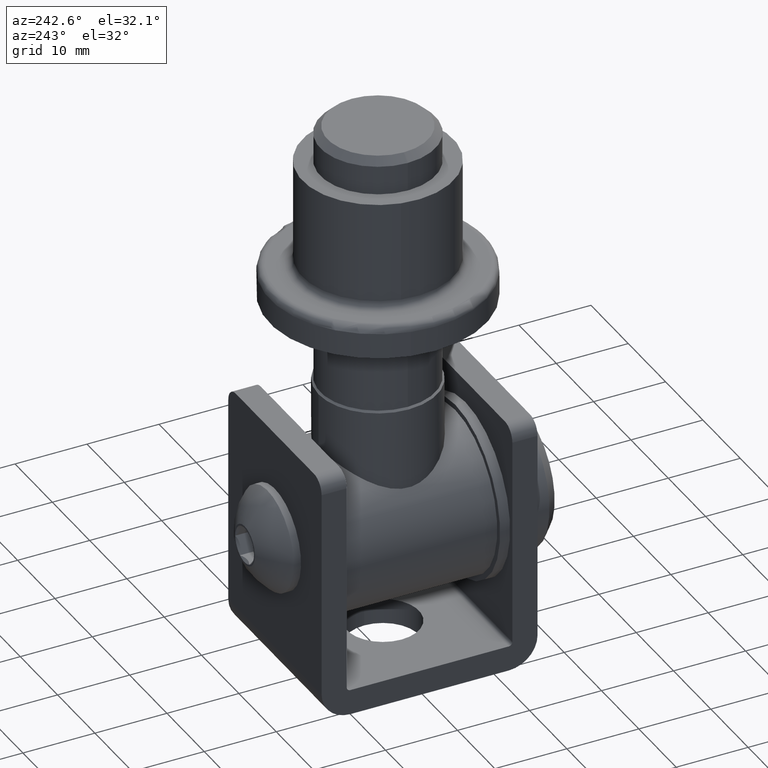
[diagram: clean part render]
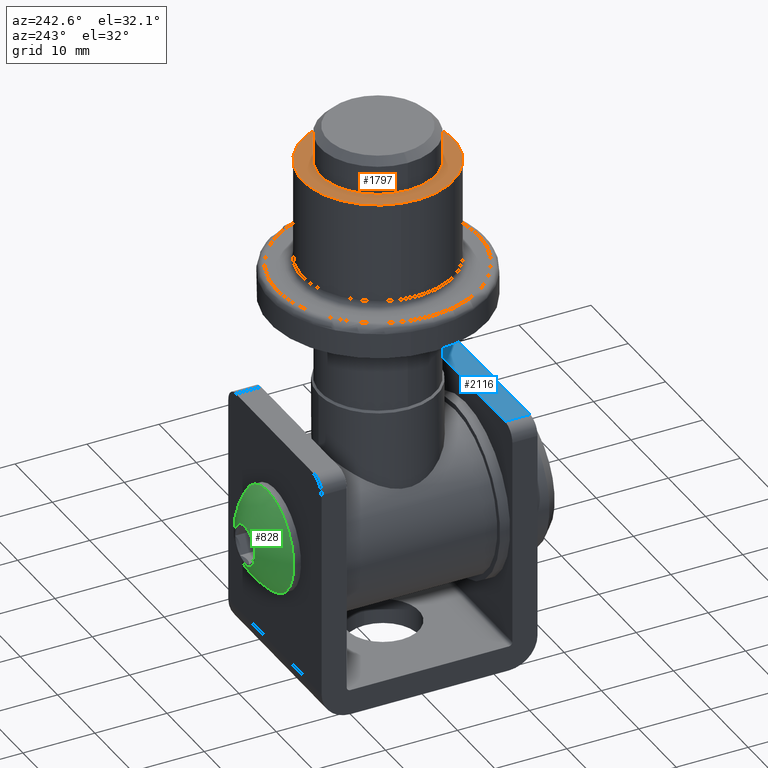
[diagram: same view with three faces highlighted in distinct colors, each labeled with its STEP entity id]
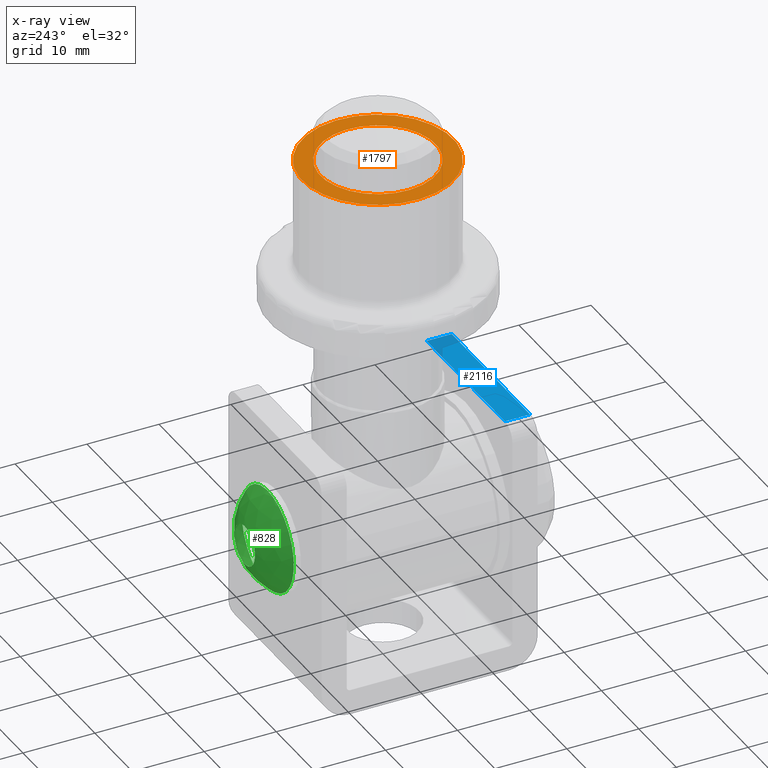
[diagram: x-ray of the same camera — body ghosted, the three highlighted faces saturated]
A machine part, auxiliary view with three faces highlighted in distinct colors.
The next image is the same camera in x-ray (body ghosted, the three faces saturated) — at least one of them is partly hidden behind the body in this view.
Their STEP definitions:

[orange] entity #1797 — the highlighted planar face has unit normal (-0, -0, 1).
#90 = EDGE_LOOP ( 'NONE', ( #6815 ) ) ;
#619 = CARTESIAN_POINT ( 'NONE',  ( 0.000000000000000000, 19.50000000000000000, 0.000000000000000000 ) ) ;
#1271 = EDGE_CURVE ( 'NONE', #10581, #10581, #9638, .T. ) ;
#1388 = VERTEX_POINT ( 'NONE', #2608 ) ;
#1561 = PLANE ( 'NONE',  #7039 ) ;
#1797 = ADVANCED_FACE ( 'NONE', ( #7055, #2805 ), #1561, .T. ) ;
#2036 = AXIS2_PLACEMENT_3D ( 'NONE', #12618, #13917, #4132 ) ;
#2608 = CARTESIAN_POINT ( 'NONE',  ( 0.000000000000000000, 19.50000000000000000, -10.49999999999999467 ) ) ;
#2692 = EDGE_LOOP ( 'NONE', ( #13382 ) ) ;
#2805 = FACE_OUTER_BOUND ( 'NONE', #90, .T. ) ;
#4132 = DIRECTION ( 'NONE',  ( 0.000000000000000000, 0.000000000000000000, 1.000000000000000000 ) ) ;
#4674 = CARTESIAN_POINT ( 'NONE',  ( 0.000000000000000000, 19.50000000000000000, 0.000000000000000000 ) ) ;
#4879 = CIRCLE ( 'NONE', #6578, 10.49999999999999467 ) ;
#5682 = CARTESIAN_POINT ( 'NONE',  ( 0.000000000000000000, 19.50000000000000000, 8.000000000000000000 ) ) ;
#5937 = DIRECTION ( 'NONE',  ( 0.000000000000000000, -0.000000000000000000, 1.000000000000000000 ) ) ;
#6578 = AXIS2_PLACEMENT_3D ( 'NONE', #4674, #8848, #6807 ) ;
#6807 = DIRECTION ( 'NONE',  ( 0.000000000000000000, 0.000000000000000000, -1.000000000000000000 ) ) ;
#6815 = ORIENTED_EDGE ( 'NONE', *, *, #9769, .F. ) ;
#7039 = AXIS2_PLACEMENT_3D ( 'NONE', #619, #7062, #5937 ) ;
#7055 = FACE_BOUND ( 'NONE', #2692, .T. ) ;
#7062 = DIRECTION ( 'NONE',  ( 0.000000000000000000, 1.000000000000000000, 0.000000000000000000 ) ) ;
#8848 = DIRECTION ( 'NONE',  ( -0.000000000000000000, -1.000000000000000000, -0.000000000000000000 ) ) ;
#9638 = CIRCLE ( 'NONE', #2036, 8.000000000000000000 ) ;
#9769 = EDGE_CURVE ( 'NONE', #1388, #1388, #4879, .T. ) ;
#10581 = VERTEX_POINT ( 'NONE', #5682 ) ;
#12618 = CARTESIAN_POINT ( 'NONE',  ( 0.000000000000000000, 19.50000000000000000, 0.000000000000000000 ) ) ;
#13382 = ORIENTED_EDGE ( 'NONE', *, *, #1271, .T. ) ;
#13917 = DIRECTION ( 'NONE',  ( -0.000000000000000000, -1.000000000000000000, -0.000000000000000000 ) ) ;

[blue] entity #2116 — the highlighted planar face has unit normal (0, -0, 1).
#430 = EDGE_LOOP ( 'NONE', ( #1649, #6618, #12485, #3990 ) ) ;
#876 = VERTEX_POINT ( 'NONE', #9605 ) ;
#1649 = ORIENTED_EDGE ( 'NONE', *, *, #13115, .T. ) ;
#2116 = ADVANCED_FACE ( 'NONE', ( #2978 ), #12868, .T. ) ;
#2174 = CARTESIAN_POINT ( 'NONE',  ( 10.50000000000000000, 14.99999999999999822, 0.000000000000000000 ) ) ;
#2175 = VERTEX_POINT ( 'NONE', #2174 ) ;
#2297 = LINE ( 'NONE', #7439, #9960 ) ;
#2822 = EDGE_CURVE ( 'NONE', #7172, #876, #2297, .T. ) ;
#2978 = FACE_OUTER_BOUND ( 'NONE', #430, .T. ) ;
#3072 = DIRECTION ( 'NONE',  ( 0.000000000000000000, 1.000000000000000000, 9.912705577010338368E-16 ) ) ;
#3600 = AXIS2_PLACEMENT_3D ( 'NONE', #11825, #5332, #3072 ) ;
#3761 = CARTESIAN_POINT ( 'NONE',  ( -10.49999999999999822, 11.50000000000000178, -3.469446951953614189E-15 ) ) ;
#3990 = ORIENTED_EDGE ( 'NONE', *, *, #13835, .T. ) ;
#4124 = DIRECTION ( 'NONE',  ( 0.000000000000000000, -1.000000000000000000, -9.912705577010338368E-16 ) ) ;
#4144 = CARTESIAN_POINT ( 'NONE',  ( 10.50000000000000000, 11.50000000000000178, -3.469446951953614189E-15 ) ) ;
#4521 = VECTOR ( 'NONE', #5369, 1000.000000000000000 ) ;
#5328 = VECTOR ( 'NONE', #4124, 1000.000000000000000 ) ;
#5332 = DIRECTION ( 'NONE',  ( 0.000000000000000000, 9.912705577010338368E-16, -1.000000000000000000 ) ) ;
#5369 = DIRECTION ( 'NONE',  ( -1.000000000000000000, -0.000000000000000000, -0.000000000000000000 ) ) ;
#6208 = LINE ( 'NONE', #7575, #4521 ) ;
#6335 = LINE ( 'NONE', #8885, #9748 ) ;
#6618 = ORIENTED_EDGE ( 'NONE', *, *, #2822, .T. ) ;
#6832 = LINE ( 'NONE', #13857, #5328 ) ;
#7172 = VERTEX_POINT ( 'NONE', #3761 ) ;
#7249 = DIRECTION ( 'NONE',  ( -0.000000000000000000, 1.000000000000000000, 9.912705577010338368E-16 ) ) ;
#7439 = CARTESIAN_POINT ( 'NONE',  ( -10.49999999999999822, 14.99999999999999822, 0.000000000000000000 ) ) ;
#7575 = CARTESIAN_POINT ( 'NONE',  ( 12.50000000000000000, 14.99999999999999822, 0.000000000000000000 ) ) ;
#7965 = DIRECTION ( 'NONE',  ( -1.000000000000000000, -0.000000000000000000, -0.000000000000000000 ) ) ;
#8885 = CARTESIAN_POINT ( 'NONE',  ( 12.50000000000000000, 11.50000000000000178, -3.469446951953614189E-15 ) ) ;
#8956 = VERTEX_POINT ( 'NONE', #4144 ) ;
#9605 = CARTESIAN_POINT ( 'NONE',  ( -10.49999999999999822, 14.99999999999999822, 0.000000000000000000 ) ) ;
#9748 = VECTOR ( 'NONE', #7965, 1000.000000000000000 ) ;
#9960 = VECTOR ( 'NONE', #7249, 1000.000000000000000 ) ;
#10685 = EDGE_CURVE ( 'NONE', #2175, #876, #6208, .T. ) ;
#11825 = CARTESIAN_POINT ( 'NONE',  ( 12.50000000000000000, 14.99999999999999822, 0.000000000000000000 ) ) ;
#12485 = ORIENTED_EDGE ( 'NONE', *, *, #10685, .F. ) ;
#12868 = PLANE ( 'NONE',  #3600 ) ;
#13115 = EDGE_CURVE ( 'NONE', #8956, #7172, #6335, .T. ) ;
#13835 = EDGE_CURVE ( 'NONE', #2175, #8956, #6832, .T. ) ;
#13857 = CARTESIAN_POINT ( 'NONE',  ( 10.50000000000000000, 11.50000000000000178, -3.469446951953614189E-15 ) ) ;

[green] entity #828 — the highlighted spherical surface has radius 8.5356 mm.
#222 = VERTEX_POINT ( 'NONE', #5902 ) ;
#828 = ADVANCED_FACE ( 'NONE', ( #12691, #9124 ), #2836, .T. ) ;
#1571 = CARTESIAN_POINT ( 'NONE',  ( -9.416456888161249228E-14, 16.99999999999998934, 0.000000000000000000 ) ) ;
#2028 = EDGE_LOOP ( 'NONE', ( #6928 ) ) ;
#2836 = SPHERICAL_SURFACE ( 'NONE', #3226, 8.535619956023333899 ) ;
#3226 = AXIS2_PLACEMENT_3D ( 'NONE', #8453, #4192, #14030 ) ;
#3253 = ORIENTED_EDGE ( 'NONE', *, *, #9651, .F. ) ;
#4192 = DIRECTION ( 'NONE',  ( 0.000000000000000000, 0.000000000000000000, 1.000000000000000000 ) ) ;
#4727 = CARTESIAN_POINT ( 'NONE',  ( -2.738650000000010465, 20.20000000000003126, 0.000000000000000000 ) ) ;
#5902 = CARTESIAN_POINT ( 'NONE',  ( -7.000000000000111022, 16.99999999999995381, 0.000000000000000000 ) ) ;
#6760 = AXIS2_PLACEMENT_3D ( 'NONE', #8800, #8664, #12042 ) ;
#6928 = ORIENTED_EDGE ( 'NONE', *, *, #7295, .T. ) ;
#7295 = EDGE_CURVE ( 'NONE', #222, #222, #7942, .T. ) ;
#7373 = AXIS2_PLACEMENT_3D ( 'NONE', #1571, #9463, #10651 ) ;
#7942 = CIRCLE ( 'NONE', #7373, 7.000000000000016875 ) ;
#8453 = CARTESIAN_POINT ( 'NONE',  ( 8.673617379884035472E-16, 12.11565684726562075, 0.000000000000000000 ) ) ;
#8664 = DIRECTION ( 'NONE',  ( -5.539092287153678847E-15, 1.000000000000000000, -0.000000000000000000 ) ) ;
#8800 = CARTESIAN_POINT ( 'NONE',  ( -1.118896642005045751E-13, 20.20000000000004547, 0.000000000000000000 ) ) ;
#9124 = FACE_OUTER_BOUND ( 'NONE', #10329, .T. ) ;
#9463 = DIRECTION ( 'NONE',  ( -5.539092287153678847E-15, 1.000000000000000000, -0.000000000000000000 ) ) ;
#9651 = EDGE_CURVE ( 'NONE', #13992, #13992, #13532, .T. ) ;
#10329 = EDGE_LOOP ( 'NONE', ( #3253 ) ) ;
#10651 = DIRECTION ( 'NONE',  ( -1.000000000000000000, -5.451988067355666480E-15, 0.000000000000000000 ) ) ;
#12042 = DIRECTION ( 'NONE',  ( -1.000000000000000000, -5.067382764433195760E-15, 0.000000000000000000 ) ) ;
#12691 = FACE_OUTER_BOUND ( 'NONE', #2028, .T. ) ;
#13532 = CIRCLE ( 'NONE', #6760, 2.738649999999898554 ) ;
#13992 = VERTEX_POINT ( 'NONE', #4727 ) ;
#14030 = DIRECTION ( 'NONE',  ( -1.000000000000000000, -5.487303100733992551E-15, 0.000000000000000000 ) ) ;